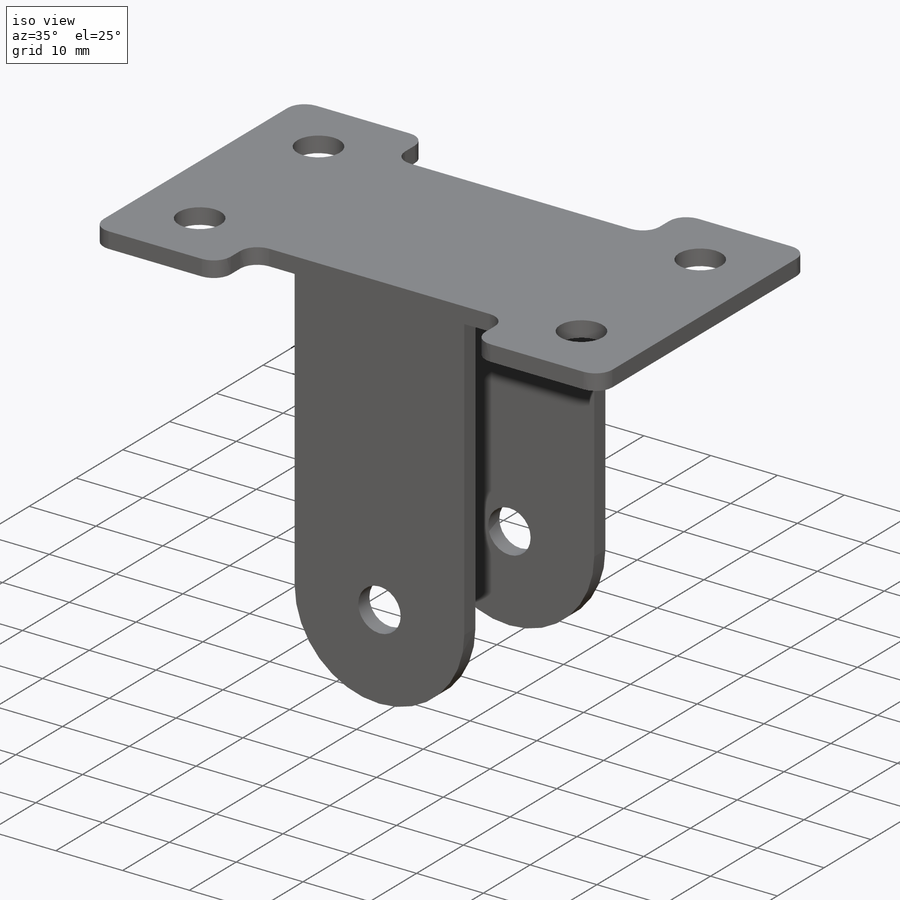
[diagram: iso view]
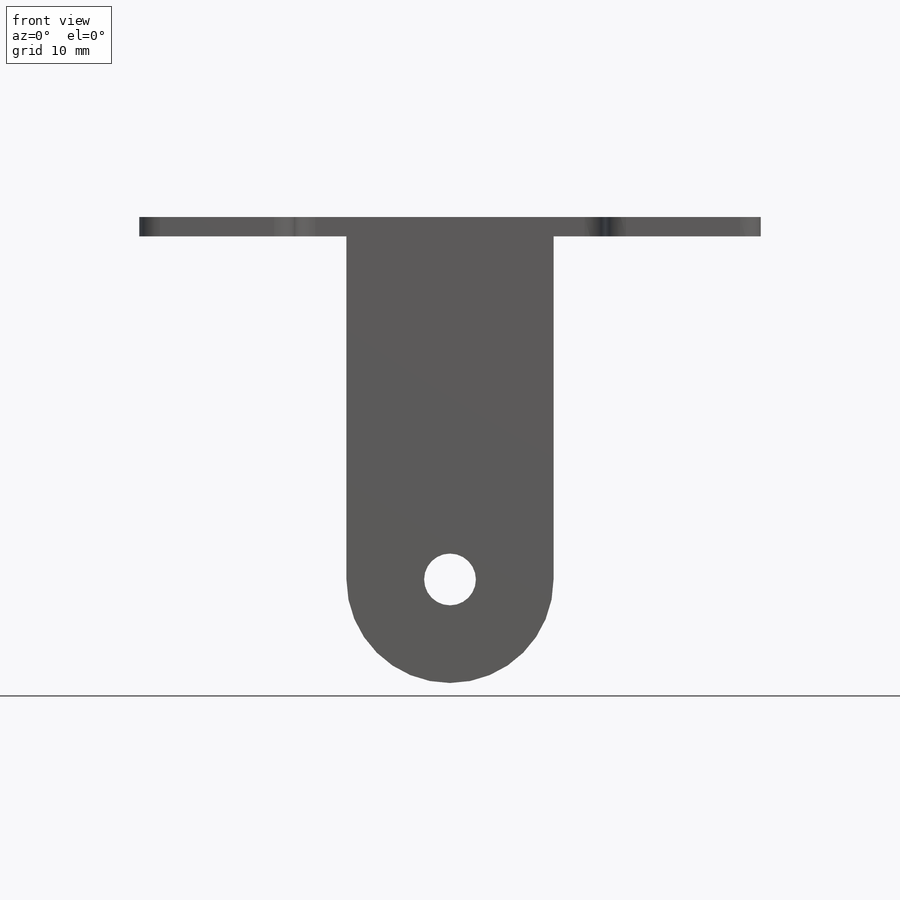
[diagram: front view]
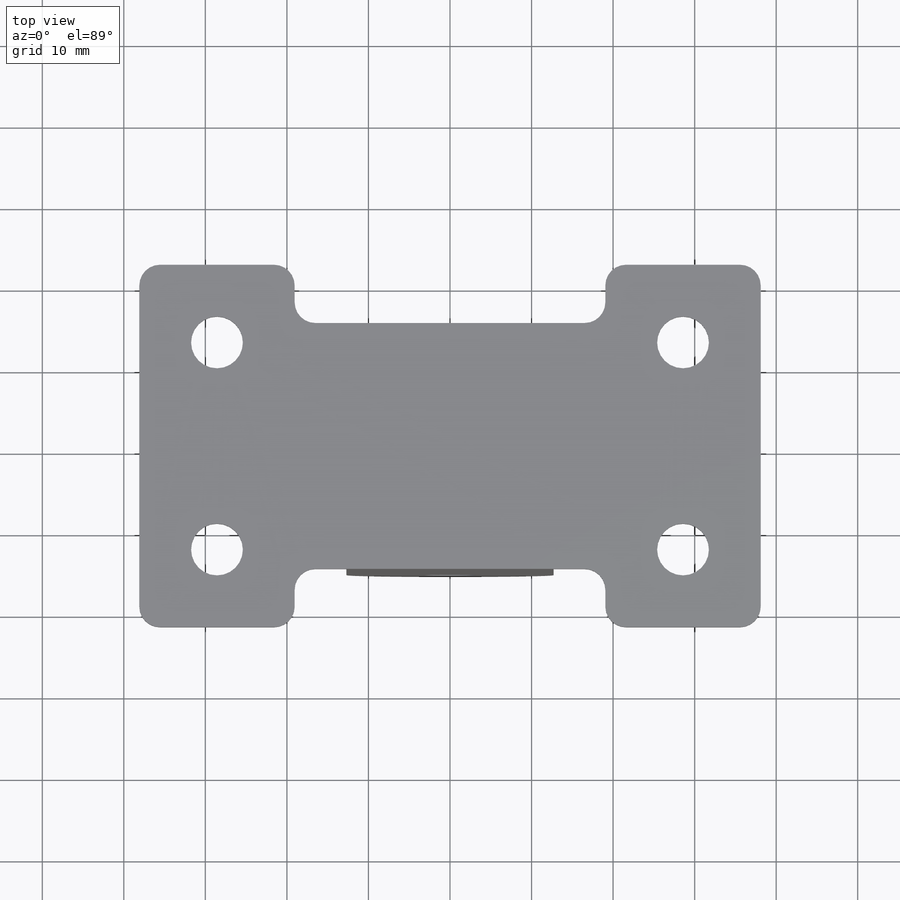
[diagram: top view]
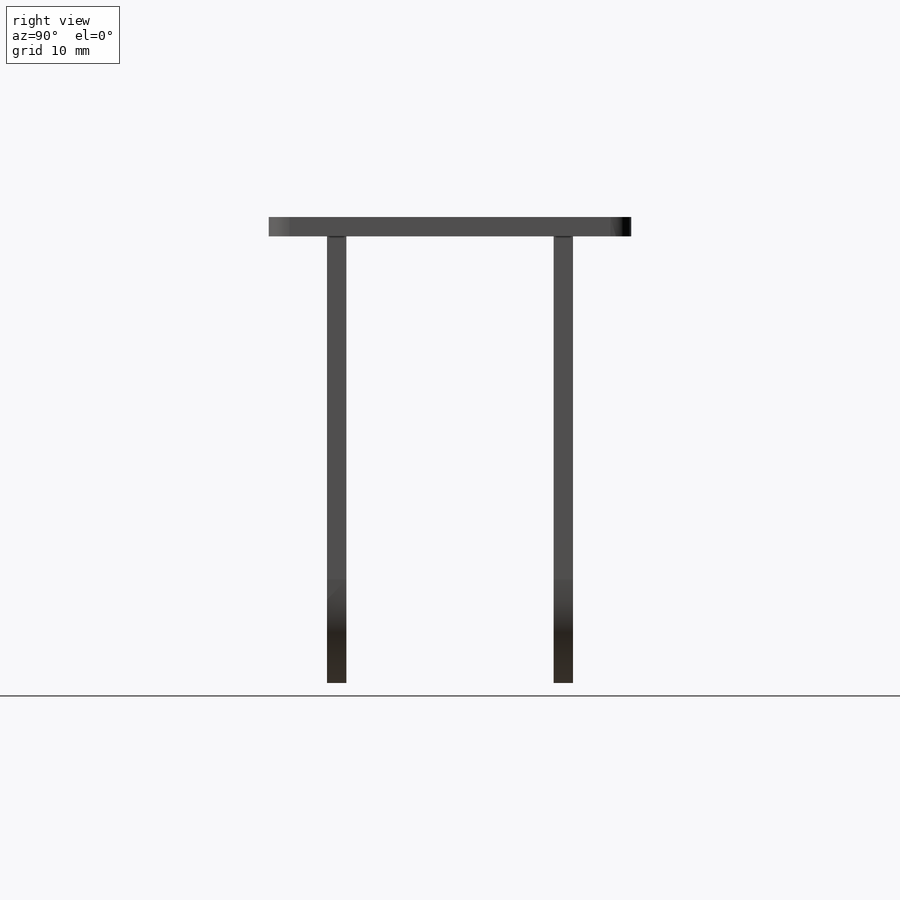
[diagram: right view]
SOLIDWORKS PART (.sldprt)
format: sldprt  version: not decoded by parser v0  size: 246,784 bytes
history: native  units: mm
features: sketch x5, cut_extrude x3, extrude x2, material x1, mirror x1, fillet x1 (+16 scaffold rows collapsed)
feature tree (29):
  scaffold x16  (default folders/planes/origin — collapsed)
  material  "Material <not specified>"
  sketch  "Sketch1"  dims[D1=76.2mm D2=44.45mm D3=38.1mm D4=22.225mm]
  extrude  "Boss-Extrude1"  Depth=2.38125mm
  sketch  "Sketch2"  dims[c1.D1=~2.738804mm c1.D3=~3.580593mm c1.D4=~2.738804mm c1.D6=~2.738804mm c1.D7=6.35mm c2.D1=25.4mm c2.D2=25.4mm c2.D3=57.15mm c2.D4=57.15mm c2.D5=9.525mm c2.D6=9.525mm]
  cut_extrude  "Cut-Extrude1"  Depth=2.38125mm
  sketch  "Sketch5"  dims[D1=~7.14375mm D2=19.05mm D3=19.05mm]
  cut_extrude  "Cut-Extrude4"  Depth=2.38125mm
  sketch  "Sketch6"  dims[D1=25.4mm D2=44.45mm D3=12.7mm D4=~2.38125mm]
  extrude  "Boss-Extrude4"  Depth=2.38125mm
  sketch  "Sketch7"  dims[c1.D1=6.35mm c1.D3=6.35mm c1.D2=0.0mm c2.D3=12.7mm]
  cut_extrude  "Cut-Extrude5"  Depth=2.38125mm
  mirror  "Mirror2"
  fillet  "Fillet1"  Radius=2.54mm
decode coverage: 11 of 12 modeling features carry decoded parameters
note: ~ marks probable driven/reference dimensions
note: suppression state not decoded; provenance and decode notes live in map.json
